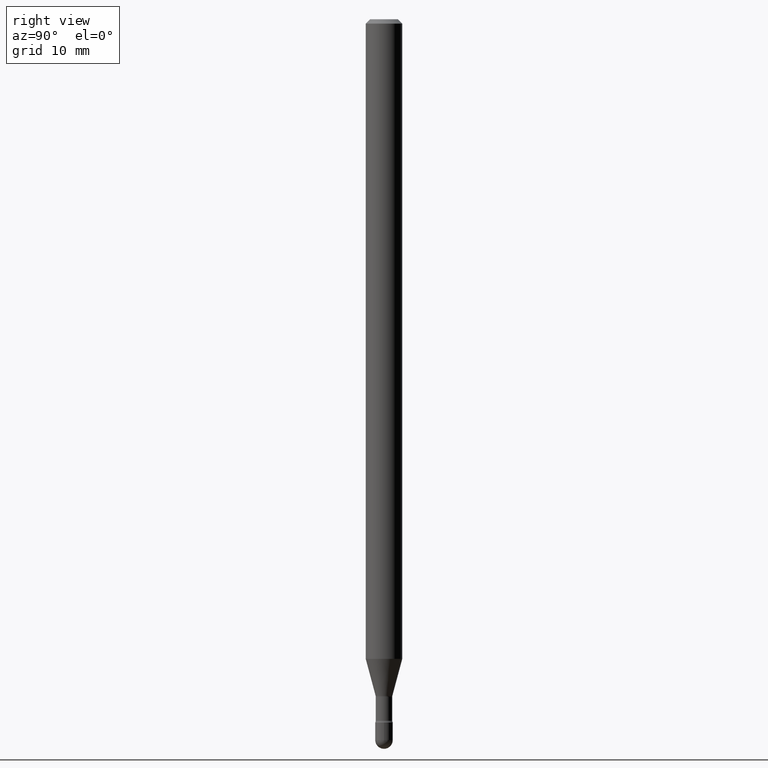
[diagram: clean part render]
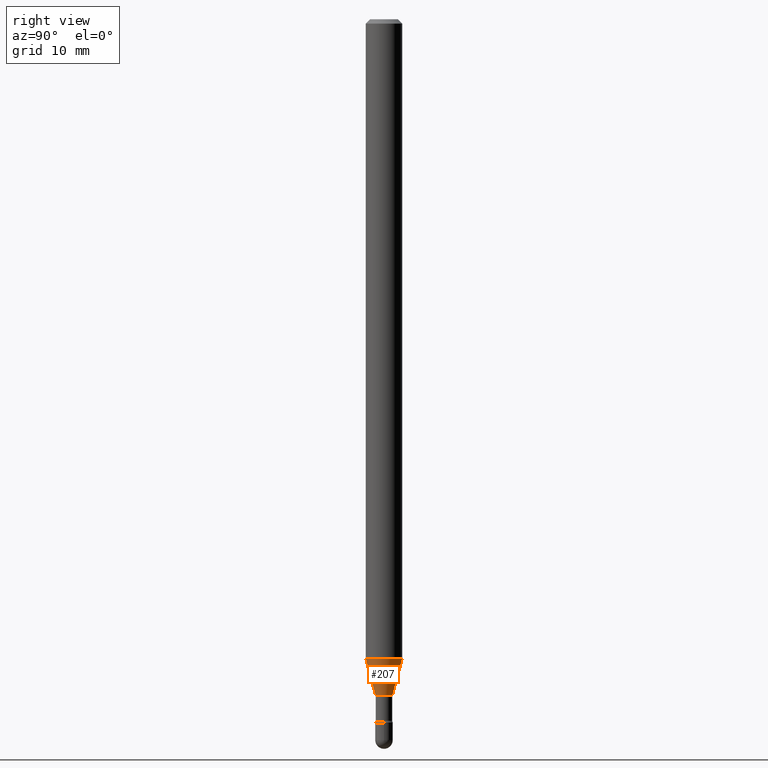
[diagram: same view with one face highlighted and labeled with its STEP entity id]
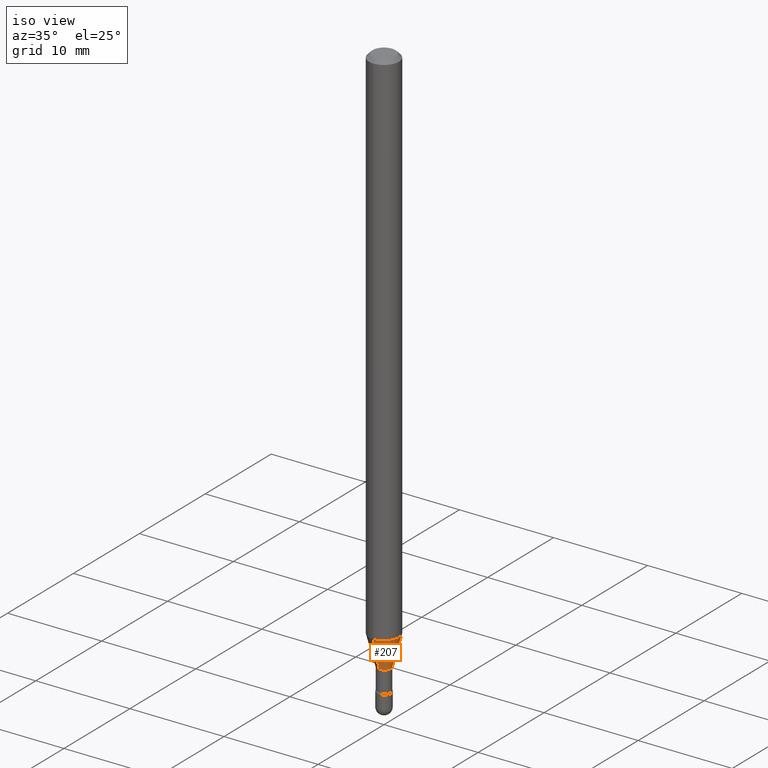
[diagram: same view with one face highlighted and labeled with its STEP entity id]
A machine part, right view. The second image highlights one B-rep face of the part: STEP entity #207.
A second angle (iso view) of the same face is appended — the face is thin or edge-on in the first view.
In plain terms, the highlighted conical surface has half-angle 15 deg.
Its self-contained STEP definition (entity closure, byte-faithful):
#3 = DIRECTION ( 'NONE',  ( 1.839019923739598738E-15, 0.2588190451025247363, 0.9659258262890673130 ) ) ;
#16 = DIRECTION ( 'NONE',  ( -2.445513622403205886E-29, 3.491417159468089591E-15, 1.000000000000000000 ) ) ;
#19 = EDGE_LOOP ( 'NONE', ( #119, #241, #178, #385 ) ) ;
#20 = AXIS2_PLACEMENT_3D ( 'NONE', #398, #16, #508 ) ;
#35 = CONICAL_SURFACE ( 'NONE', #254, 0.02871111260566398468, 0.2617993877991500740 ) ;
#42 = CARTESIAN_POINT ( 'NONE',  ( 4.440892098501159629E-16, 0.06249999999999233252, -2.191990657300388001 ) ) ;
#66 = DIRECTION ( 'NONE',  ( -6.982962677686265922E-15, -1.000000000000000000, 4.370956789862821150E-15 ) ) ;
#71 = FACE_OUTER_BOUND ( 'NONE', #19, .T. ) ;
#85 = LINE ( 'NONE', #135, #169 ) ;
#88 = VERTEX_POINT ( 'NONE', #180 ) ;
#98 = CARTESIAN_POINT ( 'NONE',  ( -4.364351673553382241E-16, -0.06250000000000768829, -2.191990657300387557 ) ) ;
#119 = ORIENTED_EDGE ( 'NONE', *, *, #386, .T. ) ;
#134 = CARTESIAN_POINT ( 'NONE',  ( -2.004886277601425921E-16, -0.02871111260567207543, -2.318092501787273108 ) ) ;
#135 = CARTESIAN_POINT ( 'NONE',  ( 2.040047249755045120E-16, 0.02871111260565589046, -2.318092501787273108 ) ) ;
#149 = EDGE_CURVE ( 'NONE', #216, #346, #286, .T. ) ;
#169 = VECTOR ( 'NONE', #3, 39.37007874015748854 ) ;
#178 = ORIENTED_EDGE ( 'NONE', *, *, #361, .F. ) ;
#180 = CARTESIAN_POINT ( 'NONE',  ( 3.240469674128104223E-16, 0.02871111260565589046, -2.318092501787273108 ) ) ;
#207 = ADVANCED_FACE ( 'NONE', ( #71 ), #35, .T. ) ;
#216 = VERTEX_POINT ( 'NONE', #134 ) ;
#240 = DIRECTION ( 'NONE',  ( -1.807323732225328562E-15, -0.2588190451025179639, 0.9659258262890690894 ) ) ;
#241 = ORIENTED_EDGE ( 'NONE', *, *, #321, .T. ) ;
#246 = CARTESIAN_POINT ( 'NONE',  ( -2.004886277601425921E-16, -0.02871111260567207543, -2.318092501787273108 ) ) ;
#251 = DIRECTION ( 'NONE',  ( -2.445513622403205886E-29, 3.491417159468089591E-15, 1.000000000000000000 ) ) ;
#254 = AXIS2_PLACEMENT_3D ( 'NONE', #370, #251, #415 ) ;
#286 = LINE ( 'NONE', #246, #334 ) ;
#288 = DIRECTION ( 'NONE',  ( -2.445513622403205886E-29, 3.491417159468089591E-15, 1.000000000000000000 ) ) ;
#321 = EDGE_CURVE ( 'NONE', #88, #522, #85, .T. ) ;
#334 = VECTOR ( 'NONE', #240, 39.37007874015748854 ) ;
#346 = VERTEX_POINT ( 'NONE', #98 ) ;
#361 = EDGE_CURVE ( 'NONE', #346, #522, #372, .T. ) ;
#370 = CARTESIAN_POINT ( 'NONE',  ( 5.668926791111504643E-29, -8.093427937974399086E-15, -2.318092501787273108 ) ) ;
#372 = CIRCLE ( 'NONE', #411, 0.06250000000000000000 ) ;
#385 = ORIENTED_EDGE ( 'NONE', *, *, #149, .F. ) ;
#386 = EDGE_CURVE ( 'NONE', #216, #88, #552, .T. ) ;
#398 = CARTESIAN_POINT ( 'NONE',  ( 5.668926791111504643E-29, -8.093427937974399086E-15, -2.318092501787273108 ) ) ;
#411 = AXIS2_PLACEMENT_3D ( 'NONE', #543, #288, #66 ) ;
#415 = DIRECTION ( 'NONE',  ( -6.982962677686265133E-15, -1.000000000000000000, 0.000000000000000000 ) ) ;
#508 = DIRECTION ( 'NONE',  ( -6.982962677686265133E-15, -1.000000000000000000, 0.000000000000000000 ) ) ;
#522 = VERTEX_POINT ( 'NONE', #42 ) ;
#543 = CARTESIAN_POINT ( 'NONE',  ( 5.360543012608655241E-29, -7.653153794292311533E-15, -2.191990657300388001 ) ) ;
#552 = CIRCLE ( 'NONE', #20, 0.02871111260566398468 ) ;